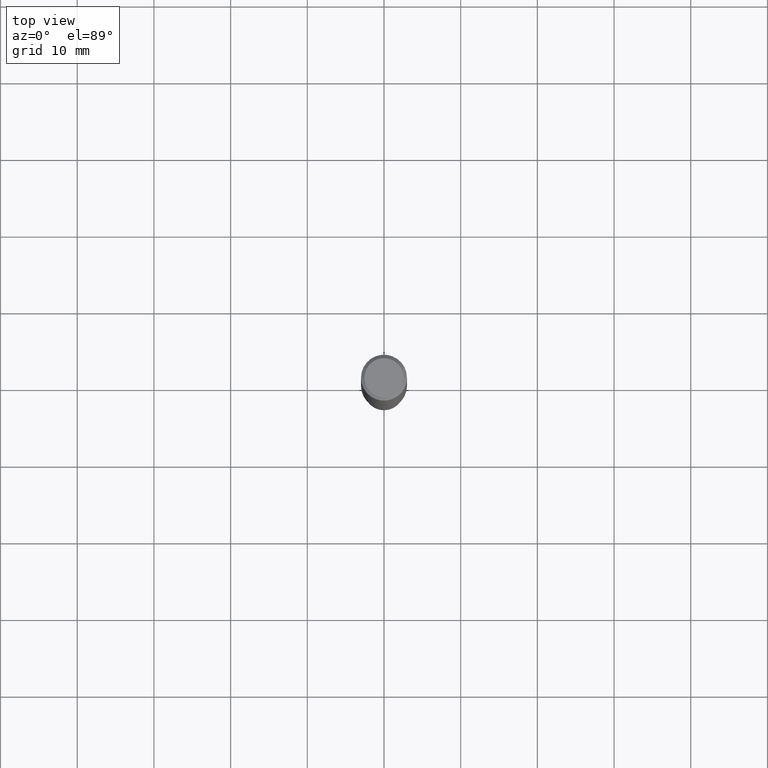
[diagram: clean part render]
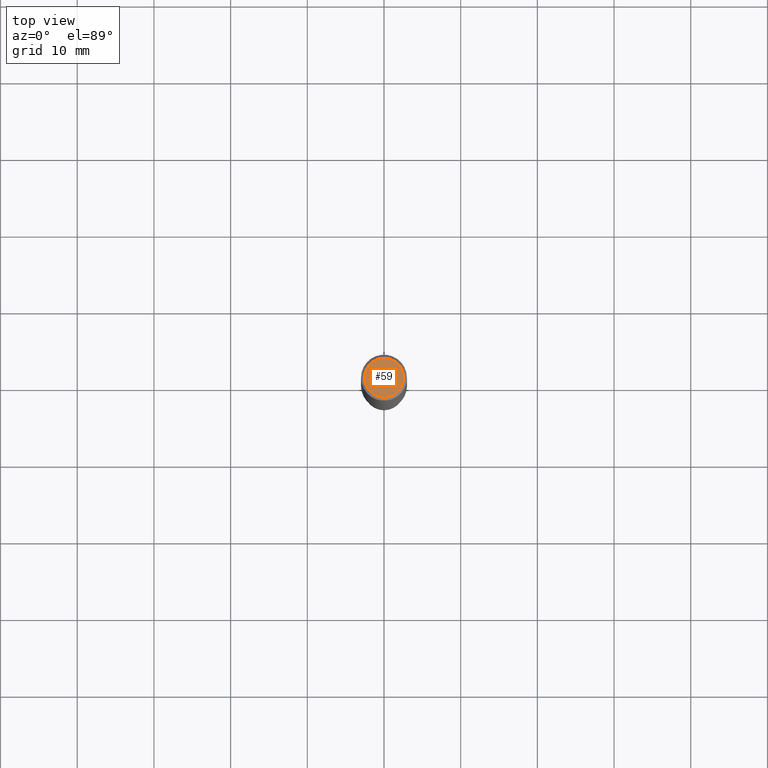
[diagram: same view with one face highlighted and labeled with its STEP entity id]
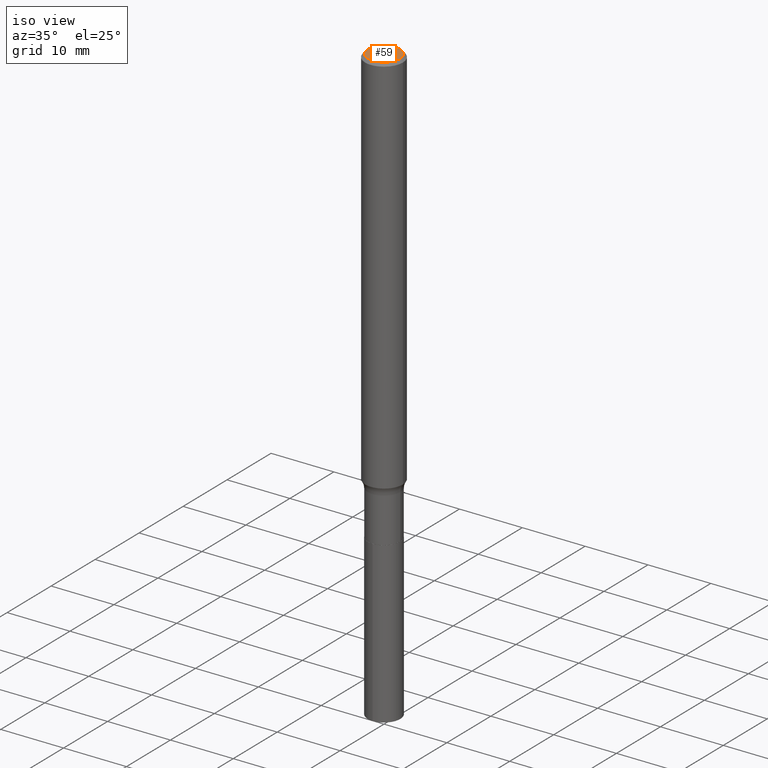
[diagram: same view with one face highlighted and labeled with its STEP entity id]
A machine part, top view. The second image highlights one B-rep face of the part: STEP entity #59.
A second angle (iso view) of the same face is appended — the face is thin or edge-on in the first view.
In plain terms, the highlighted planar face has unit normal (0, -0, -1).
Its self-contained STEP definition (entity closure, byte-faithful):
#41 = DIRECTION ( 'NONE',  ( -2.445468806185136597E-29, 3.491481338843145583E-15, 1.000000000000000000 ) ) ;
#59 = ADVANCED_FACE ( 'NONE', ( #225 ), #358, .F. ) ;
#63 = EDGE_CURVE ( 'NONE', #364, #140, #366, .T. ) ;
#75 = CARTESIAN_POINT ( 'NONE',  ( 7.015701749847187307E-46, -1.001656274515824970E-31, -2.868857591682589212E-17 ) ) ;
#103 = CARTESIAN_POINT ( 'NONE',  ( 0.1003850000000000159, -7.803837484803599345E-16, -2.868857591682071522E-17 ) ) ;
#140 = VERTEX_POINT ( 'NONE', #456 ) ;
#141 = AXIS2_PLACEMENT_3D ( 'NONE', #362, #373, #449 ) ;
#169 = EDGE_LOOP ( 'NONE', ( #359, #371 ) ) ;
#176 = DIRECTION ( 'NONE',  ( 1.000000000000000000, -6.982962677686266711E-15, 4.875668750515085695E-29 ) ) ;
#225 = FACE_OUTER_BOUND ( 'NONE', #169, .T. ) ;
#254 = CARTESIAN_POINT ( 'NONE',  ( 7.015701749847187307E-46, -1.001656274515824970E-31, -2.868857591682589212E-17 ) ) ;
#270 = AXIS2_PLACEMENT_3D ( 'NONE', #75, #41, #437 ) ;
#273 = EDGE_CURVE ( 'NONE', #140, #364, #276, .T. ) ;
#276 = CIRCLE ( 'NONE', #297, 0.1003850000000000159 ) ;
#297 = AXIS2_PLACEMENT_3D ( 'NONE', #254, #353, #176 ) ;
#353 = DIRECTION ( 'NONE',  ( -2.445468806185136597E-29, 3.491481338843145583E-15, 1.000000000000000000 ) ) ;
#358 = PLANE ( 'NONE',  #141 ) ;
#359 = ORIENTED_EDGE ( 'NONE', *, *, #273, .T. ) ;
#362 = CARTESIAN_POINT ( 'NONE',  ( 3.507850874923593654E-46, -5.008281372579124849E-32, -1.434428795841294606E-17 ) ) ;
#364 = VERTEX_POINT ( 'NONE', #103 ) ;
#366 = CIRCLE ( 'NONE', #270, 0.1003850000000000159 ) ;
#371 = ORIENTED_EDGE ( 'NONE', *, *, #63, .T. ) ;
#373 = DIRECTION ( 'NONE',  ( 2.438088387897960049E-29, -3.491481338843145188E-15, -1.000000000000000000 ) ) ;
#437 = DIRECTION ( 'NONE',  ( 1.000000000000000000, -6.982962677686266711E-15, 4.875668750515085695E-29 ) ) ;
#449 = DIRECTION ( 'NONE',  ( -1.000000000000000000, 6.982962677686265922E-15, -4.876176775795935793E-29 ) ) ;
#456 = CARTESIAN_POINT ( 'NONE',  ( -0.1003850000000000159, 7.319105043583386689E-16, -2.868857591683090262E-17 ) ) ;